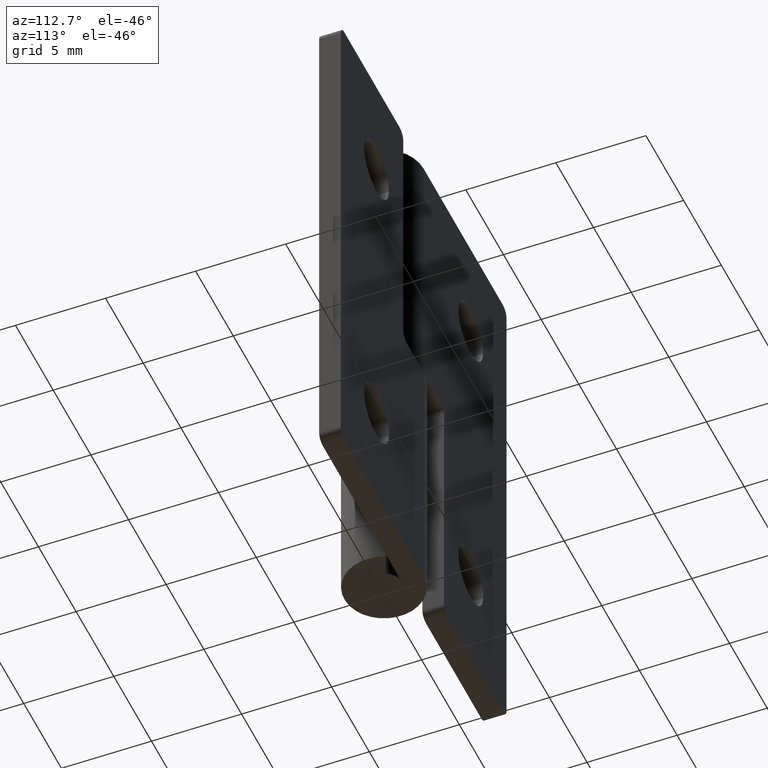
[diagram: clean part render]
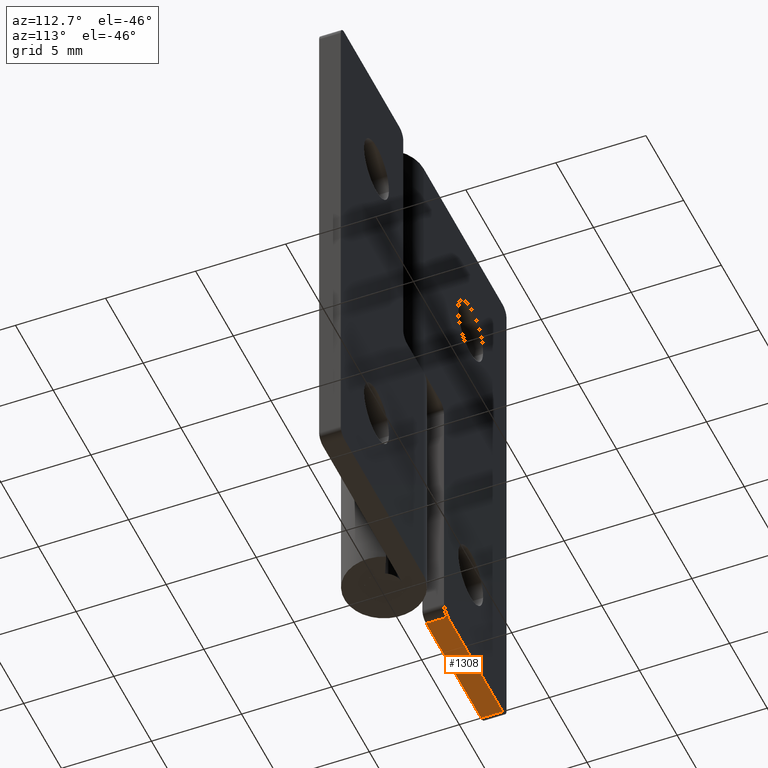
[diagram: same view with one face highlighted and labeled with its STEP entity id]
A machine part, auxiliary view. The second image highlights one B-rep face of the part: STEP entity #1308.
In plain terms, the highlighted face is a freeform B-spline surface patch.
Its self-contained STEP definition (entity closure, byte-faithful):
#1057=CARTESIAN_POINT('',(-10.500000000000000,1.0,1.421085E-014));
#1058=VERTEX_POINT('',#1057);
#1079=CARTESIAN_POINT('',(-10.500000000000000,2.200001000000000,0.0));
#1080=VERTEX_POINT('',#1079);
#1094=CARTESIAN_POINT('',(-10.500000000000000,2.200001000000000,0.0));
#1095=CARTESIAN_POINT('',(-10.500000000000000,1.0,1.421085E-014));
#1096=QUASI_UNIFORM_CURVE('',1,(#1094,#1095),.UNSPECIFIED.,.F.,.U.);
#1097=EDGE_CURVE('',#1080,#1058,#1096,.T.);
#1116=CARTESIAN_POINT('',(-3.199997000000000,1.0,0.0));
#1117=VERTEX_POINT('',#1116);
#1131=CARTESIAN_POINT('',(-3.199997000000000,2.200000999999950,0.0));
#1132=VERTEX_POINT('',#1131);
#1133=CARTESIAN_POINT('',(-3.199997000000000,2.200000999999950,0.0));
#1134=CARTESIAN_POINT('',(-3.199997000000000,1.0,0.0));
#1135=QUASI_UNIFORM_CURVE('',1,(#1133,#1134),.UNSPECIFIED.,.F.,.U.);
#1136=EDGE_CURVE('',#1132,#1117,#1135,.T.);
#1289=CARTESIAN_POINT('',(-10.864635135701180,0.940059952375835,0.0));
#1290=CARTESIAN_POINT('',(-2.835361668497484,0.940059952375835,0.0));
#1291=CARTESIAN_POINT('',(-10.864635135701180,2.259941079810700,0.0));
#1292=CARTESIAN_POINT('',(-2.835361668497484,2.259941079810700,0.0));
#1293=B_SPLINE_SURFACE_WITH_KNOTS('',1,1,((#1289,#1291),(#1290,#1292)),.UNSPECIFIED.,.F.,.F.,.U.,(2,2),(2,2),(0.0,8.029273467203694),(0.041708334948495,0.958291687403247),.UNSPECIFIED.);
#1294=CARTESIAN_POINT('',(-10.500000000000000,1.0,1.421085E-014));
#1295=CARTESIAN_POINT('',(-3.199997000000000,1.0,0.0));
#1296=QUASI_UNIFORM_CURVE('',1,(#1294,#1295),.UNSPECIFIED.,.F.,.U.);
#1297=EDGE_CURVE('',#1058,#1117,#1296,.T.);
#1298=ORIENTED_EDGE('',*,*,#1297,.F.);
#1299=ORIENTED_EDGE('',*,*,#1097,.F.);
#1300=CARTESIAN_POINT('',(-3.199997000000000,2.200000999999950,0.0));
#1301=CARTESIAN_POINT('',(-10.500000000000000,2.200001000000000,0.0));
#1302=QUASI_UNIFORM_CURVE('',1,(#1300,#1301),.UNSPECIFIED.,.F.,.U.);
#1303=EDGE_CURVE('',#1132,#1080,#1302,.T.);
#1304=ORIENTED_EDGE('',*,*,#1303,.F.);
#1305=ORIENTED_EDGE('',*,*,#1136,.T.);
#1306=EDGE_LOOP('',(#1298,#1299,#1304,#1305));
#1307=FACE_OUTER_BOUND('',#1306,.T.);
#1308=ADVANCED_FACE('',(#1307),#1293,.F.);